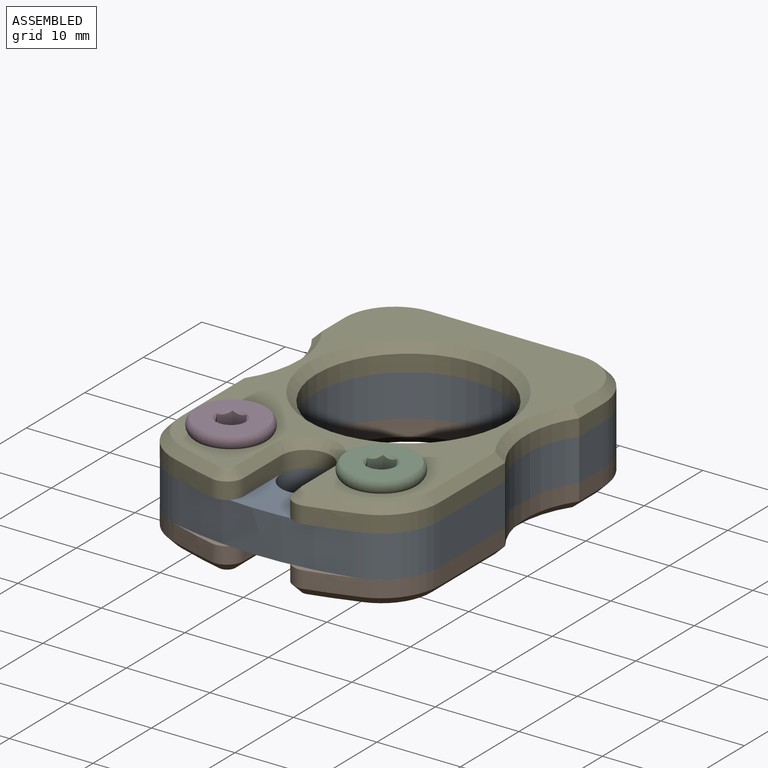
[diagram: assembled view]
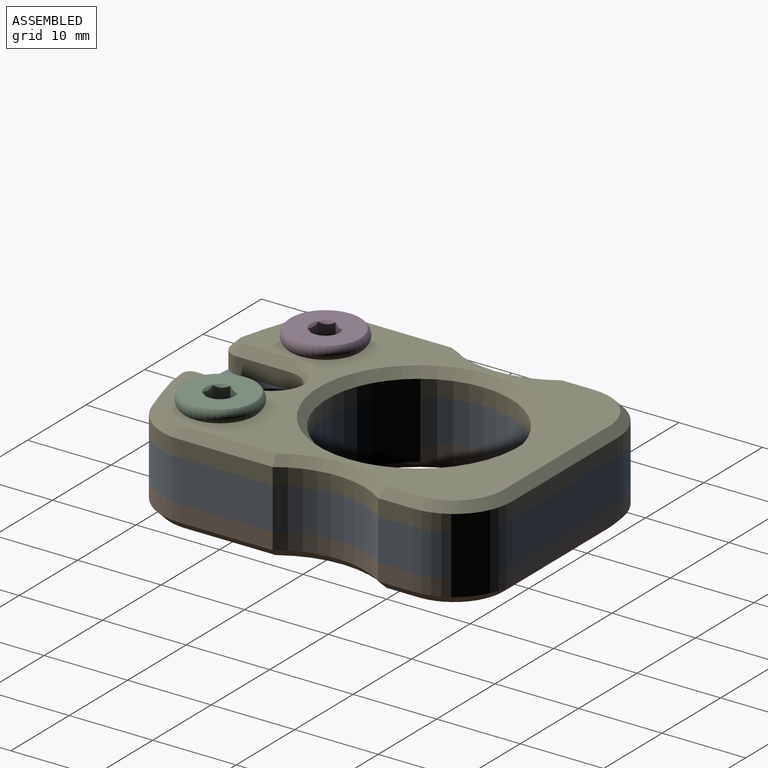
[diagram: assembled view, second angle]
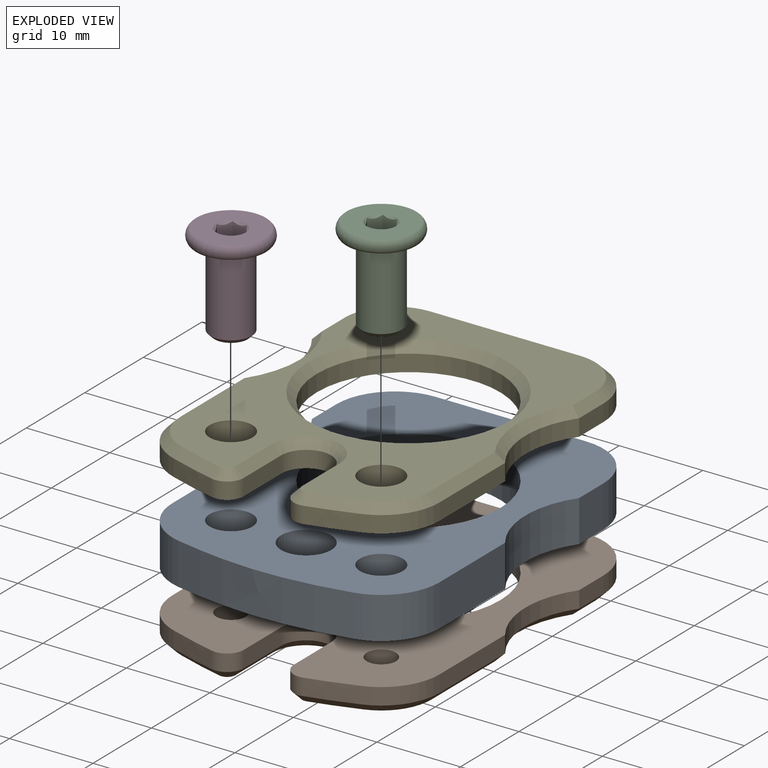
[diagram: exploded view]
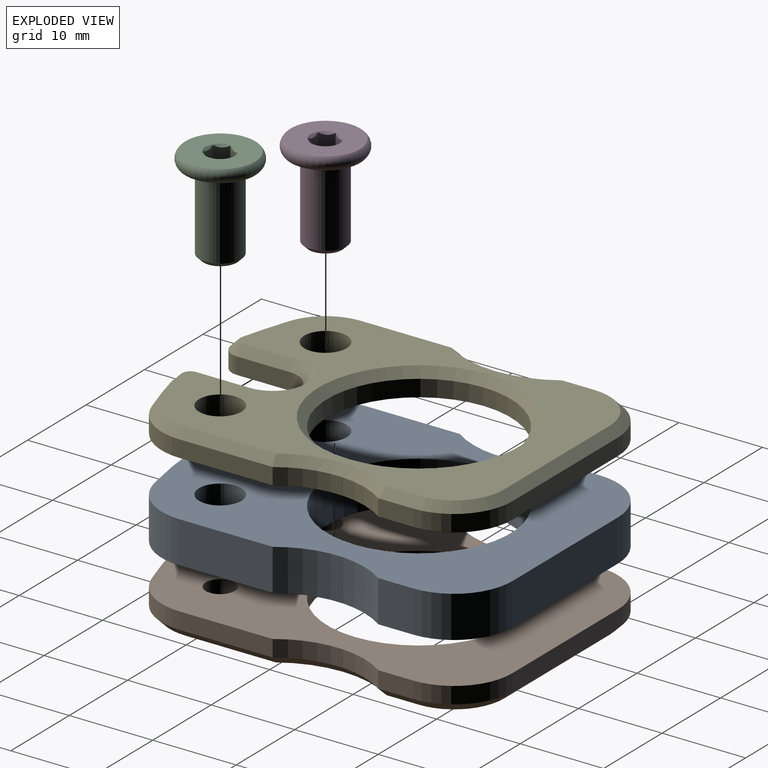
[diagram: exploded view, second angle]
ASSEMBLY  parts=5 mates=4
PART A: 18 faces, bbox 32x43.1x5 mm
  f0: plane 5x4.18mm, normal (1,0,0), area 20.9mm2, adj f1,f15,f16,f17
  f1: cylinder r=7mm len=7mm, axis (0,0,-1), area 55mm2, adj f0,f2,f16,f17
  f2: plane 18x5mm, normal (0,1,0), area 90mm2, adj f1,f3,f16,f17
  f3: cylinder r=7mm len=7mm, axis (0,0,-1), area 55mm2, adj f2,f4,f16,f17
  f4: plane 5x4.18mm, normal (-1,0,0), area 20.9mm2, adj f3,f5,f16,f17
  f5: cylinder r=11mm len=12.65mm, axis (0,0,-1), area 67.4mm2, adj f4,f6,f16,f17
  f6: plane 11.18x5mm, normal (-1,0,0), area 55.9mm2, adj f5,f7,f16,f17
  f7: cylinder r=7mm len=6.84mm, axis (0,0,-1), area 47.5mm2, adj f6,f8,f16,f17
  f8: extruded ~20.97x5mm, area 105.7mm2, adj f7,f9,f16,f17
  f9: cylinder r=7mm len=6.84mm, axis (0,0,-1), area 47.5mm2, adj f8,f10,f16,f17
  f10: plane 11.18x5mm, normal (1,0,0), area 55.9mm2, adj f9,f15,f16,f17
  f11: cylinder r=11mm len=22mm, axis (0,0,-1), area 345.6mm2, adj f16,f17
  f12: cylinder r=2.55mm len=5.1mm, axis (0,0,-1), area 80.1mm2, adj f16,f17
  f13: cylinder r=2.55mm len=5.1mm, axis (0,0,-1), area 80.1mm2, adj f16,f17
  f14: cylinder r=3mm len=6mm, axis (0,0,-1), area 94.2mm2, adj f16,f17
  f15: cylinder r=11mm len=12.65mm, axis (0,0,-1), area 67.4mm2, adj f0,f10,f16,f17
  f16: plane 43.12x32mm, normal (0,0,1), area 831.9mm2, adj f0,f1,f2,f3,f4,f5,f6,f7
  f17: plane 43.12x32mm, normal (0,0,-1), area 831.9mm2, adj f0,f1,f2,f3,f4,f5,f6,f7
PART B: 42 faces, bbox 32.3x43.7x3.3 mm
  f0: plane 18x2mm, normal (0,1,0), area 36mm2, adj f1,f20,f21,f33
  f1: cylinder r=7mm len=7mm, axis (0,0,-1), area 22mm2, adj f0,f2,f21,f35
  f2: plane 4.18x2mm, normal (-1,0,0), area 8.4mm2, adj f1,f3,f21,f37
  f3: cylinder r=11mm len=12.65mm, axis (0,0,-1), area 27mm2, adj f2,f4,f21,f39
  f4: plane 11.18x2mm, normal (-1,0,0), area 22.4mm2, adj f3,f5,f21,f40
  f5: cylinder r=7mm len=6.65mm, axis (0,0,-1), area 17.5mm2, adj f4,f6,f21,f38
  f6: extruded ~5.75x2mm, area 12mm2, adj f5,f7,f21,f36
  f7: cylinder r=2mm len=2.45mm, axis (0,0,-1), area 7.2mm2, adj f6,f8,f21,f34
  f8: plane 6.39x2mm, normal (1,0,0), area 12.8mm2, adj f7,f9,f21,f32
  f9: cylinder r=3mm len=6mm, axis (0,0,-1), area 18.8mm2, adj f8,f10,f21,f30
  f10: plane 6.39x2mm, normal (-1,0,0), area 12.8mm2, adj f9,f11,f21,f28
  f11: cylinder r=2mm len=2.45mm, axis (0,0,-1), area 7.2mm2, adj f10,f12,f21,f26
  f12: extruded ~5.75x2mm, area 12mm2, adj f11,f13,f21,f24
  f13: cylinder r=7mm len=6.65mm, axis (0,0,-1), area 17.5mm2, adj f12,f14,f21,f23
  f14: plane 11.18x2mm, normal (1,0,0), area 22.4mm2, adj f13,f15,f21,f25
  f15: cylinder r=11mm len=12.65mm, axis (0,0,-1), area 27mm2, adj f14,f16,f21,f27
  f16: plane 4.18x2mm, normal (1,0,0), area 8.4mm2, adj f15,f20,f21,f29
  f17: cylinder r=11mm len=22mm, axis (0,0,-1), area 138.2mm2, adj f21,f41
  f18: cylinder r=1.75mm len=3.5mm, axis (0,0,-1), area 33mm2, adj f21,f22
  f19: cylinder r=1.75mm len=3.5mm, axis (0,0,-1), area 33mm2, adj f21,f22
  f20: cylinder r=7mm len=7mm, axis (0,0,-1), area 22mm2, adj f0,f16,f21,f31
  f21: plane 43.39x32mm, normal (0,0,1), area 823.8mm2, adj f0,f1,f2,f3,f4,f5,f6,f7
  f22: plane 41.73x30.34mm, normal (0,0,-1), area 598.2mm2, adj f18,f19,f23,f24,f25,f26,f27,f28
  f23: cone r=7mm half-angle=45deg, axis (0,0,1), area 11.5mm2, adj f13,f22,f24,f25
  f24: bspline ~5.97x2.64mm, area 8.4mm2, adj f12,f22,f23,f26
  f25: plane 11.19x1.01mm, normal (0.71,0,-0.71), area 15.6mm2, adj f14,f22,f23,f27
  f26: cone r=2mm half-angle=45deg, axis (0,0,1), area 3.8mm2, adj f11,f22,f24,f28
  f27: cone r=12mm half-angle=45deg, axis (0,0,-1), area 19.5mm2, adj f15,f22,f25,f29
  f28: plane 6.39x1mm, normal (-0.71,0,-0.71), area 9mm2, adj f10,f22,f26,f30
  f29: plane 4.19x1.01mm, normal (0.71,0,-0.71), area 5.7mm2, adj f16,f22,f27,f31
  f30: cone r=4mm half-angle=45deg, axis (0,0,-1), area 15.6mm2, adj f9,f22,f28,f32
  f31: cone r=7mm half-angle=45deg, axis (0,0,1), area 14.4mm2, adj f20,f22,f29,f33
  f32: plane 6.39x1mm, normal (0.71,0,-0.71), area 9mm2, adj f8,f22,f30,f34
  f33: plane 18x1mm, normal (0,0.71,-0.71), area 25.5mm2, adj f0,f22,f31,f35
  f34: cone r=2mm half-angle=45deg, axis (0,0,1), area 3.8mm2, adj f7,f22,f32,f36
  f35: cone r=7mm half-angle=45deg, axis (0,0,1), area 14.4mm2, adj f1,f22,f33,f37
  f36: bspline ~5.97x2.64mm, area 8.4mm2, adj f6,f22,f34,f38
  f37: plane 4.19x1.01mm, normal (-0.71,0,-0.71), area 5.7mm2, adj f2,f22,f35,f39
  f38: cone r=7mm half-angle=45deg, axis (0,0,1), area 11.5mm2, adj f5,f22,f36,f40
  f39: cone r=12mm half-angle=45deg, axis (0,0,-1), area 19.5mm2, adj f3,f22,f37,f40
  f40: plane 11.19x1.01mm, normal (-0.71,0,-0.71), area 15.6mm2, adj f4,f22,f38,f39
  f41: cone r=12mm half-angle=45deg, axis (0,0,-1), area 102.2mm2, adj f17,f22
PART C: 14 faces, bbox 11.8x9.7x9.7 mm
  f0: cylinder r=2.5mm len=9.5mm, axis (1,0,0), area 149.2mm2, adj f3,f13
  f1: plane 8.32x8.32mm, normal (-1,0,0), area 44.4mm2, adj f2,f4
  f2: torus R=3.5mm, axis (-1,0,0), area 46.7mm2, adj f1,f3
  f3: plane 8.32x8.32mm, normal (1,0,0), area 34.8mm2, adj f0,f2
  f4: cone r=1.78mm half-angle=45deg, axis (-1,0,0), area 3.1mm2, adj f1,f6,f7,f8,f9,f10,f11
  f5: plane 3.46x3mm, normal (-1,0,0), area 7.8mm2, adj f6,f7,f8,f9,f10,f11
  f6: plane 2.25x1.5mm, normal (0,-0.5,-0.87), area 3.6mm2, adj f4,f5,f7,f11
  f7: plane 2.25x1.73mm, normal (0,-1,0), area 3.6mm2, adj f4,f5,f6,f8
  f8: plane 2.25x1.5mm, normal (0,-0.5,0.87), area 3.6mm2, adj f4,f5,f7,f9
  f9: plane 2.25x1.5mm, normal (0,0.5,0.87), area 3.6mm2, adj f4,f5,f8,f10
  f10: plane 2.25x1.73mm, normal (0,1,0), area 3.6mm2, adj f4,f5,f9,f11
  f11: plane 2.25x1.5mm, normal (0,0.5,-0.87), area 3.6mm2, adj f4,f5,f6,f10
  f12: plane 4x4mm, normal (1,0,0), area 12.6mm2, adj f13
  f13: cone r=2mm half-angle=45deg, axis (-1,0,0), area 10mm2, adj f0,f12
PART D: same geometry as C
PART E: 42 faces, bbox 32.3x43.7x3.3 mm
  f0: plane 18x2mm, normal (0,1,0), area 36mm2, adj f1,f20,f22,f33
  f1: cylinder r=7mm len=7mm, axis (0,0,-1), area 22mm2, adj f0,f2,f22,f31
  f2: plane 4.18x2mm, normal (-1,0,0), area 8.4mm2, adj f1,f3,f22,f29
  f3: cylinder r=11mm len=12.65mm, axis (0,0,-1), area 27mm2, adj f2,f4,f22,f27
  f4: plane 11.18x2mm, normal (-1,0,0), area 22.4mm2, adj f3,f5,f22,f25
  f5: cylinder r=7mm len=6.65mm, axis (0,0,-1), area 17.5mm2, adj f4,f6,f22,f23
  f6: extruded ~5.75x2mm, area 12mm2, adj f5,f7,f22,f24
  f7: cylinder r=2mm len=2.45mm, axis (0,0,-1), area 7.2mm2, adj f6,f8,f22,f26
  f8: plane 6.39x2mm, normal (1,0,0), area 12.8mm2, adj f7,f9,f22,f28
  f9: cylinder r=3mm len=6mm, axis (0,0,-1), area 18.8mm2, adj f8,f10,f22,f30
  f10: plane 6.39x2mm, normal (-1,0,0), area 12.8mm2, adj f9,f11,f22,f32
  f11: cylinder r=2mm len=2.45mm, axis (0,0,-1), area 7.2mm2, adj f10,f12,f22,f34
  f12: extruded ~5.75x2mm, area 12mm2, adj f11,f13,f22,f36
  f13: cylinder r=7mm len=6.65mm, axis (0,0,-1), area 17.5mm2, adj f12,f14,f22,f38
  f14: plane 11.18x2mm, normal (1,0,0), area 22.4mm2, adj f13,f15,f22,f40
  f15: cylinder r=11mm len=12.65mm, axis (0,0,-1), area 27mm2, adj f14,f16,f22,f39
  f16: plane 4.18x2mm, normal (1,0,0), area 8.4mm2, adj f15,f20,f22,f37
  f17: cylinder r=11mm len=22mm, axis (0,0,-1), area 138.2mm2, adj f22,f41
  f18: cylinder r=2.55mm len=5.1mm, axis (0,0,-1), area 48.1mm2, adj f21,f22
  f19: cylinder r=2.55mm len=5.1mm, axis (0,0,-1), area 48.1mm2, adj f21,f22
  f20: cylinder r=7mm len=7mm, axis (0,0,-1), area 22mm2, adj f0,f16,f22,f35
  f21: plane 41.73x30.34mm, normal (0,0,1), area 576.6mm2, adj f18,f19,f23,f24,f25,f26,f27,f28
  f22: plane 43.39x32mm, normal (0,0,-1), area 802.2mm2, adj f0,f1,f2,f3,f4,f5,f6,f7
  f23: cone r=6mm half-angle=45deg, axis (0,0,-1), area 11.5mm2, adj f5,f21,f24,f25
  f24: bspline ~5.97x2.64mm, area 8.4mm2, adj f6,f21,f23,f26
  f25: plane 11.19x1.01mm, normal (-0.71,0,0.71), area 15.6mm2, adj f4,f21,f23,f27
  f26: cone r=1mm half-angle=45deg, axis (0,0,-1), area 3.8mm2, adj f7,f21,f24,f28
  f27: cone r=11mm half-angle=45deg, axis (0,0,1), area 19.5mm2, adj f3,f21,f25,f29
  f28: plane 6.39x1mm, normal (0.71,0,0.71), area 9mm2, adj f8,f21,f26,f30
  f29: plane 4.19x1.01mm, normal (-0.71,0,0.71), area 5.7mm2, adj f2,f21,f27,f31
  f30: cone r=3mm half-angle=45deg, axis (0,0,1), area 15.6mm2, adj f9,f21,f28,f32
  f31: cone r=6mm half-angle=45deg, axis (0,0,-1), area 14.4mm2, adj f1,f21,f29,f33
  f32: plane 6.39x1mm, normal (-0.71,0,0.71), area 9mm2, adj f10,f21,f30,f34
  f33: plane 18x1mm, normal (0,0.71,0.71), area 25.5mm2, adj f0,f21,f31,f35
  f34: cone r=1mm half-angle=45deg, axis (0,0,-1), area 3.8mm2, adj f11,f21,f32,f36
  f35: cone r=6mm half-angle=45deg, axis (0,0,-1), area 14.4mm2, adj f20,f21,f33,f37
  f36: bspline ~5.97x2.64mm, area 8.4mm2, adj f12,f21,f34,f38
  f37: plane 4.19x1.01mm, normal (0.71,0,0.71), area 5.7mm2, adj f16,f21,f35,f39
  f38: cone r=6mm half-angle=45deg, axis (0,0,-1), area 11.5mm2, adj f13,f21,f36,f40
  f39: cone r=11mm half-angle=45deg, axis (0,0,1), area 19.5mm2, adj f15,f21,f37,f40
  f40: plane 11.19x1.01mm, normal (0.71,0,0.71), area 15.6mm2, adj f14,f21,f38,f39
  f41: cone r=11mm half-angle=45deg, axis (0,0,1), area 102.2mm2, adj f17,f21
PLACE A t=(14.74,-2.8,3.78)mm fixed
PLACE B t=(14.74,-2.8,0.78)mm
PLACE C rot(axis=(0,1,0),90deg) t=(23.74,-20.3,-8.22)mm
PLACE D rot(axis=(0,1,0),90deg) t=(5.74,-20.3,-8.22)mm
PLACE E t=(14.74,-2.8,8.78)mm
MATE fastened D.f0 <-> E.f5  axis (0,0,-1) through (5.74,-20.3,11.78)mm
MATE fastened C.f2 <-> E.f13  axis (0,0,-1) through (23.74,-20.3,11.78)mm
MATE fastened B.f5 <-> A.f7  axis (0,0,1) through (5.74,-20.3,3.78)mm
MATE fastened E.f5 <-> A.f7  axis (0,0,-1) through (5.74,-20.3,8.78)mm
